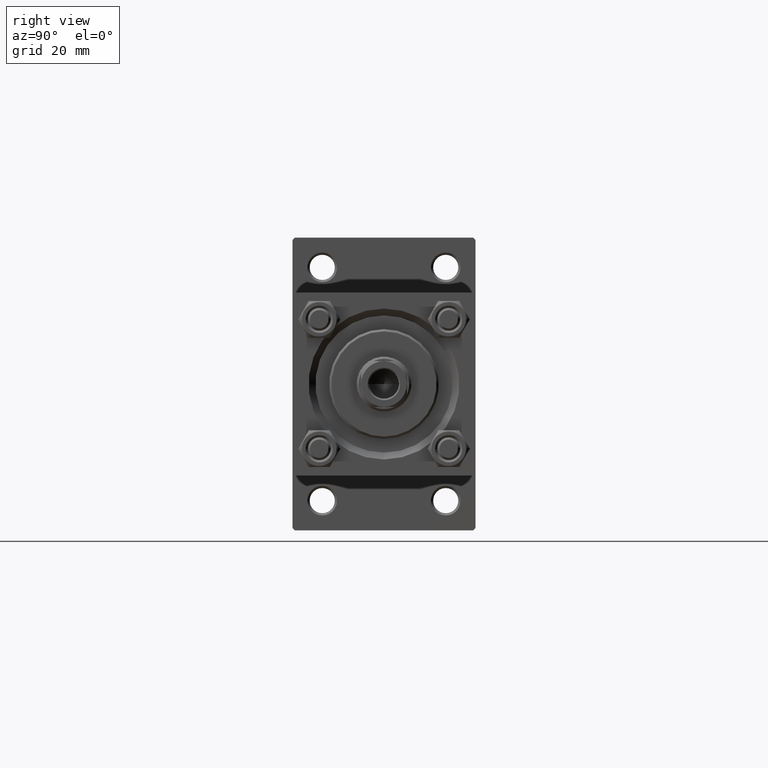
[diagram: clean part render]
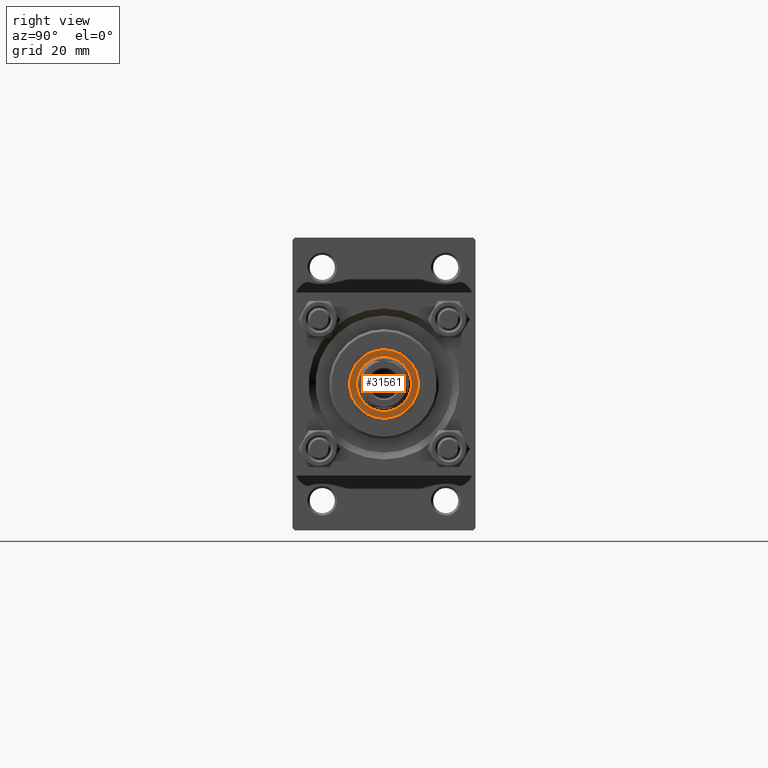
[diagram: same view with one face highlighted and labeled with its STEP entity id]
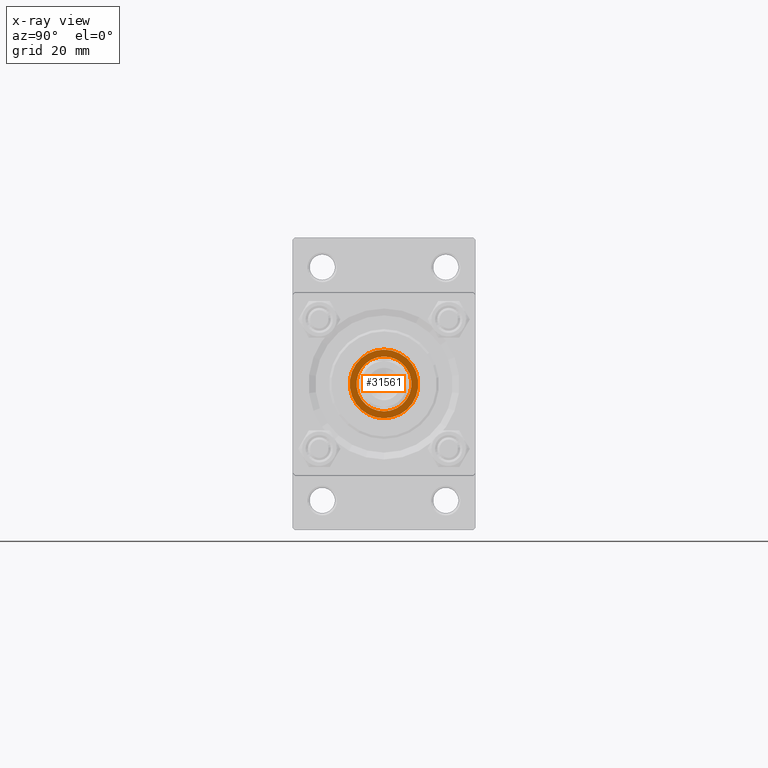
[diagram: x-ray of the same camera — body ghosted, the highlighted face saturated]
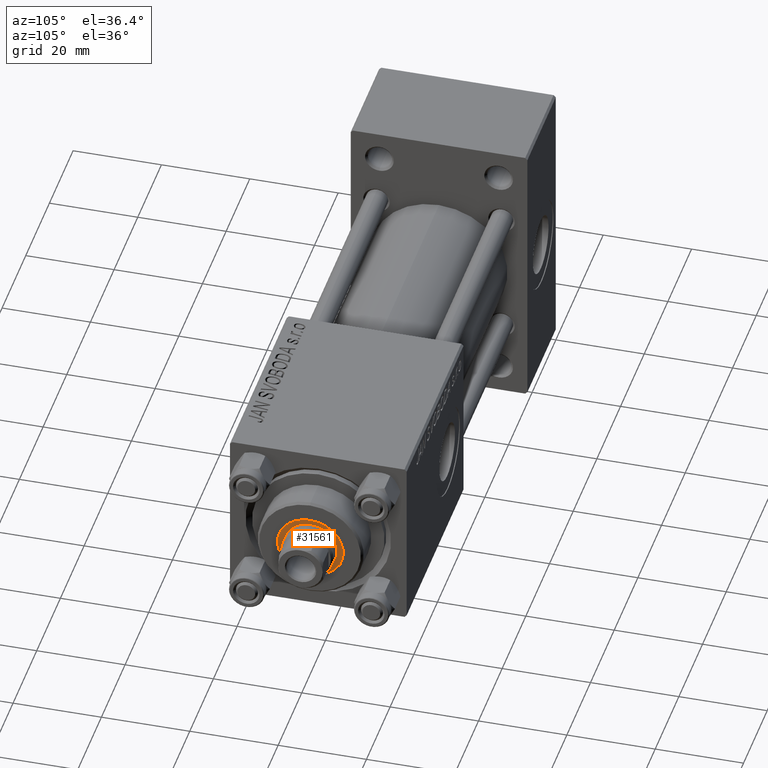
[diagram: same view with one face highlighted and labeled with its STEP entity id]
A machine part, right view. The second image highlights one B-rep face of the part: STEP entity #31561.
The next image is the same camera in x-ray: the body ghosted, the highlighted face saturated — about 0% of this face is hidden behind the body in this view.
A second angle (auxiliary view) of the same face is appended — the face is thin or edge-on in the first view.
In plain terms, the highlighted planar face has unit normal (1, 0, 0).
Its self-contained STEP definition (entity closure, byte-faithful):
#392 = AXIS2_PLACEMENT_3D ( 'NONE', #20737, #2564, #48741 ) ;
#1178 = CIRCLE ( 'NONE', #392, 7.500000000000000888 ) ;
#1318 = EDGE_CURVE ( 'NONE', #46527, #49666, #1178, .T. ) ;
#1639 = ORIENTED_EDGE ( 'NONE', *, *, #3785, .T. ) ;
#1662 = DIRECTION ( 'NONE',  ( 0.000000000000000000, 0.000000000000000000, 1.000000000000000000 ) ) ;
#2564 = DIRECTION ( 'NONE',  ( 0.000000000000000000, 0.000000000000000000, 1.000000000000000000 ) ) ;
#3037 = EDGE_CURVE ( 'NONE', #39633, #4498, #24584, .T. ) ;
#3785 = EDGE_CURVE ( 'NONE', #4498, #39633, #35065, .T. ) ;
#4342 = ORIENTED_EDGE ( 'NONE', *, *, #36277, .T. ) ;
#4498 = VERTEX_POINT ( 'NONE', #47780 ) ;
#6561 = DIRECTION ( 'NONE',  ( 1.000000000000000000, 0.000000000000000000, -0.000000000000000000 ) ) ;
#6733 = CARTESIAN_POINT ( 'NONE',  ( 0.000000000000000000, 0.000000000000000000, 35.20000000000000284 ) ) ;
#7748 = CIRCLE ( 'NONE', #31913, 7.500000000000000888 ) ;
#9397 = ORIENTED_EDGE ( 'NONE', *, *, #3037, .T. ) ;
#10254 = DIRECTION ( 'NONE',  ( 1.000000000000000000, 0.000000000000000000, 0.000000000000000000 ) ) ;
#11465 = ORIENTED_EDGE ( 'NONE', *, *, #1318, .T. ) ;
#13065 = CARTESIAN_POINT ( 'NONE',  ( -7.500000000000000888, 9.184850993605149917E-16, 35.20000000000000284 ) ) ;
#17295 = AXIS2_PLACEMENT_3D ( 'NONE', #40880, #21460, #6561 ) ;
#17345 = DIRECTION ( 'NONE',  ( 1.000000000000000000, 0.000000000000000000, 0.000000000000000000 ) ) ;
#17350 = AXIS2_PLACEMENT_3D ( 'NONE', #43357, #39564, #17345 ) ;
#17803 = DIRECTION ( 'NONE',  ( 1.000000000000000000, 0.000000000000000000, 0.000000000000000000 ) ) ;
#20737 = CARTESIAN_POINT ( 'NONE',  ( 0.000000000000000000, 0.000000000000000000, 35.20000000000000284 ) ) ;
#21460 = DIRECTION ( 'NONE',  ( 0.000000000000000000, 0.000000000000000000, 1.000000000000000000 ) ) ;
#21704 = FACE_OUTER_BOUND ( 'NONE', #28278, .T. ) ;
#24584 = CIRCLE ( 'NONE', #49622, 6.000000000000000888 ) ;
#28278 = EDGE_LOOP ( 'NONE', ( #4342, #11465 ) ) ;
#29527 = PLANE ( 'NONE',  #17295 ) ;
#30286 = FACE_BOUND ( 'NONE', #45928, .T. ) ;
#31458 = CARTESIAN_POINT ( 'NONE',  ( 7.500000000000000888, 0.000000000000000000, 35.20000000000000284 ) ) ;
#31561 = ADVANCED_FACE ( 'NONE', ( #21704, #30286 ), #29527, .T. ) ;
#31913 = AXIS2_PLACEMENT_3D ( 'NONE', #39763, #1662, #17803 ) ;
#35065 = CIRCLE ( 'NONE', #17350, 6.000000000000000888 ) ;
#36277 = EDGE_CURVE ( 'NONE', #49666, #46527, #7748, .T. ) ;
#39564 = DIRECTION ( 'NONE',  ( -0.000000000000000000, -0.000000000000000000, -1.000000000000000000 ) ) ;
#39633 = VERTEX_POINT ( 'NONE', #47674 ) ;
#39763 = CARTESIAN_POINT ( 'NONE',  ( 0.000000000000000000, 0.000000000000000000, 35.20000000000000284 ) ) ;
#40880 = CARTESIAN_POINT ( 'NONE',  ( 0.000000000000000000, 0.000000000000000000, 35.20000000000000284 ) ) ;
#43357 = CARTESIAN_POINT ( 'NONE',  ( 0.000000000000000000, 0.000000000000000000, 35.20000000000000284 ) ) ;
#44842 = DIRECTION ( 'NONE',  ( -0.000000000000000000, -0.000000000000000000, -1.000000000000000000 ) ) ;
#45928 = EDGE_LOOP ( 'NONE', ( #1639, #9397 ) ) ;
#46527 = VERTEX_POINT ( 'NONE', #13065 ) ;
#47674 = CARTESIAN_POINT ( 'NONE',  ( -6.000000000000000888, 7.347880794884119736E-16, 35.20000000000000284 ) ) ;
#47780 = CARTESIAN_POINT ( 'NONE',  ( 6.000000000000000888, 0.000000000000000000, 35.20000000000000284 ) ) ;
#48741 = DIRECTION ( 'NONE',  ( 1.000000000000000000, 0.000000000000000000, 0.000000000000000000 ) ) ;
#49622 = AXIS2_PLACEMENT_3D ( 'NONE', #6733, #44842, #10254 ) ;
#49666 = VERTEX_POINT ( 'NONE', #31458 ) ;